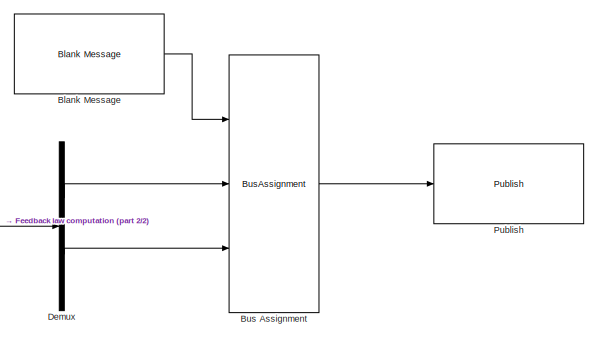
[diagram: root canvas - part 1/2, right side, full height]
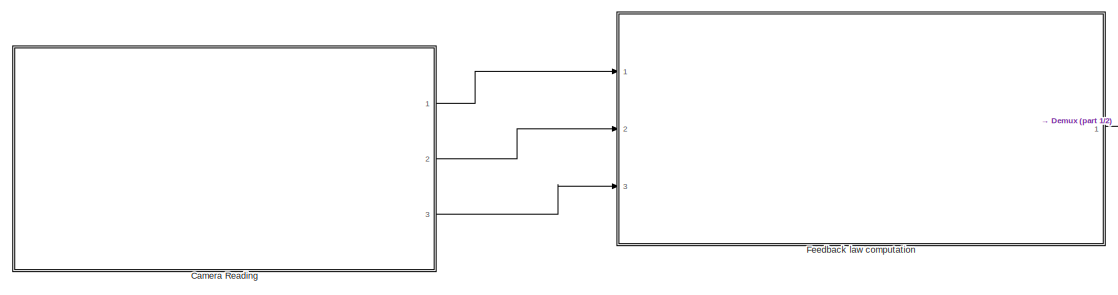
[diagram: root canvas - part 2/2, middle left region]
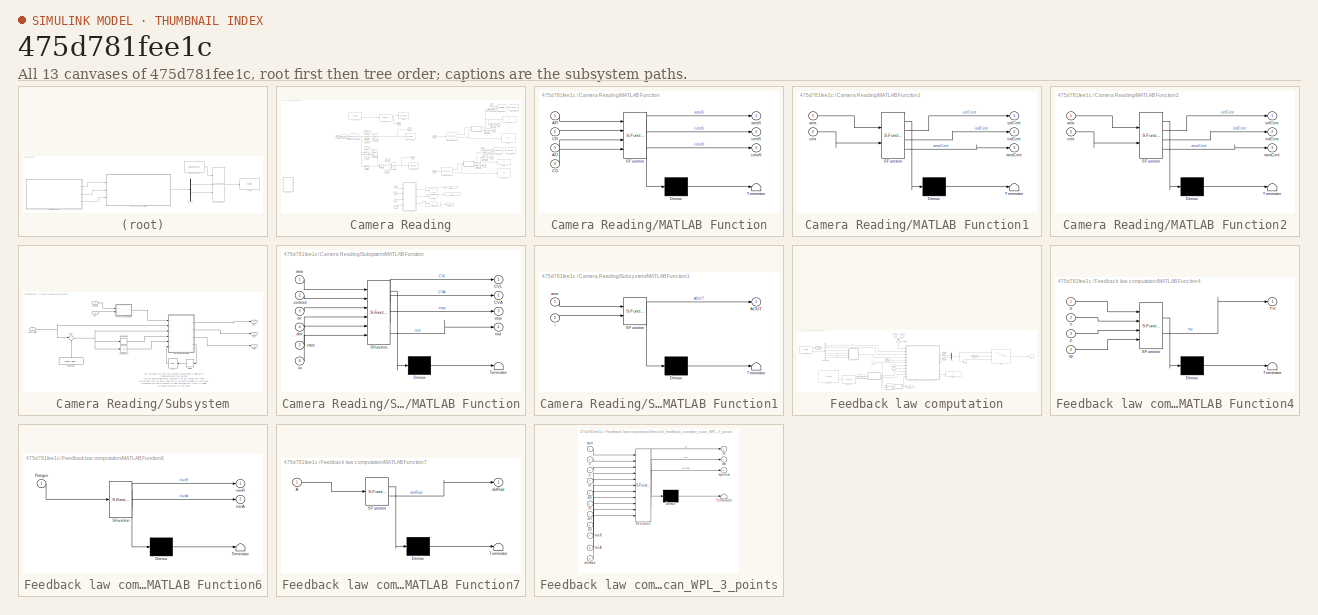
[diagram: thumbnail index - all 13 canvases of the model, root first then tree order]
MODEL slx_475d781fee1c
KIND model
CONFIG AbsTol = auto
CONFIG EnableMultiTasking = off
CONFIG FixedStep = 0.1
CONFIG MaxStep = auto
CONFIG MinStep = auto
CONFIG RelTol = 1e-3
CONFIG SampleTimeConstraint = Unconstrained
CONFIG SolverName = FixedStepAuto
CONFIG StartTime = 0.0
CONFIG StopTime = inf
WORKSPACE source: mxarray member
WORKSPACE SL_ROS_VariableLengthArrays_MaxSizes: object (value not decoded)
BLOCK [Reference] Blank Message  REF=robotlib/Blank Message
  Ports = [0, 1]
  SourceBlock = robotlib/Blank Message
  SourceProductBaseCode = RR
  SourceType = ROS Blank Message
BLOCK [BusAssignment] Bus Assignment
  AssignedSignals = Linear.X,Angular.Z
  Ports = [3, 1]
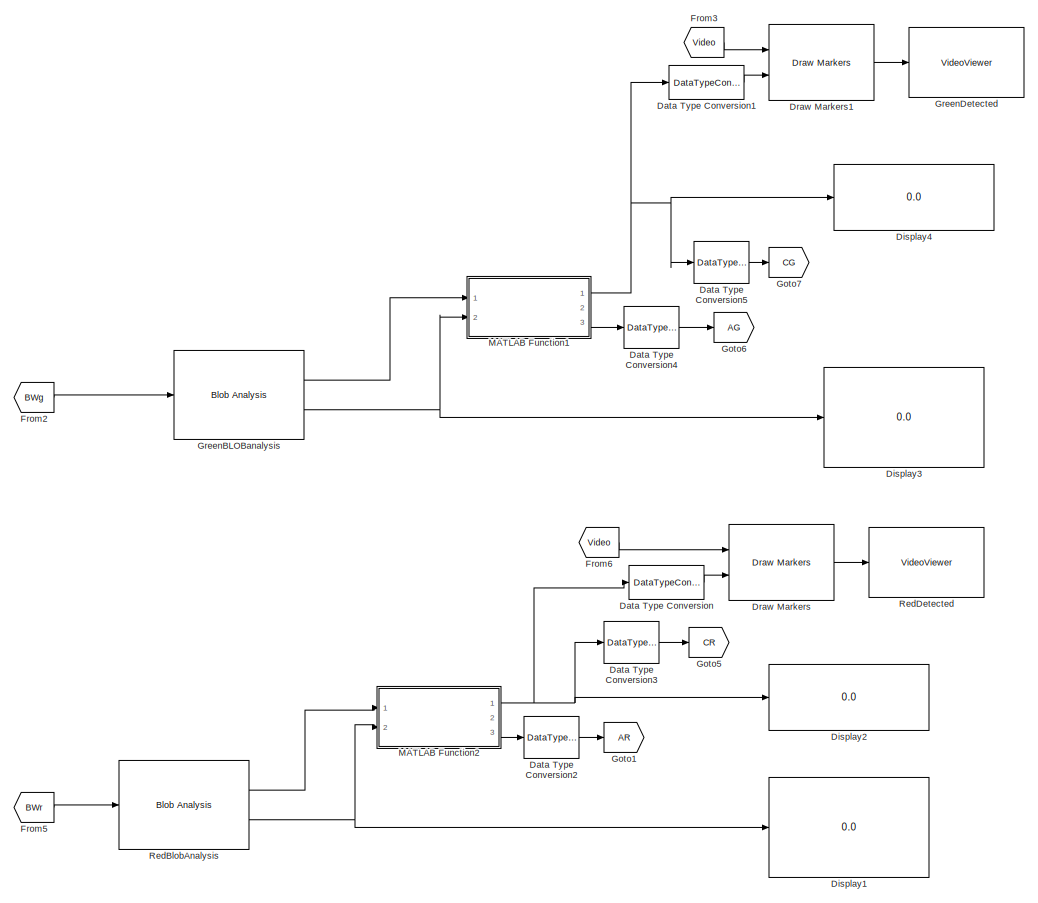
[diagram: Camera Reading - part 1/4, middle right region]
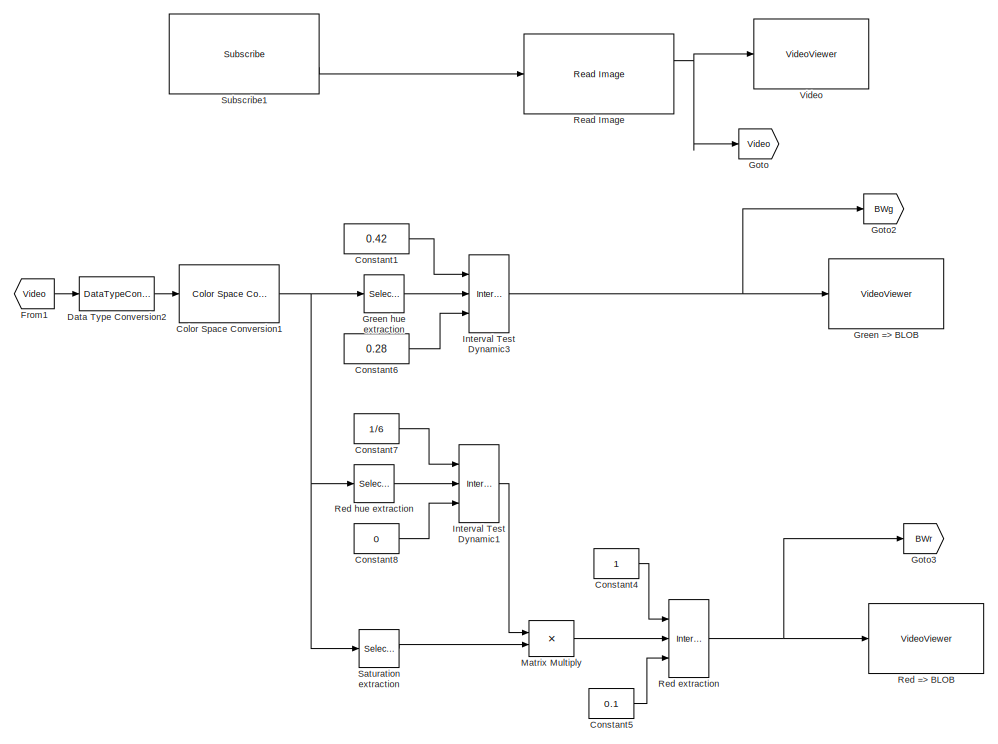
[diagram: Camera Reading - part 2/4, central region]
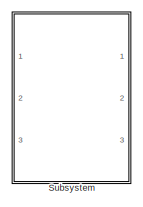
[diagram: Camera Reading - part 3/4, bottom left region]
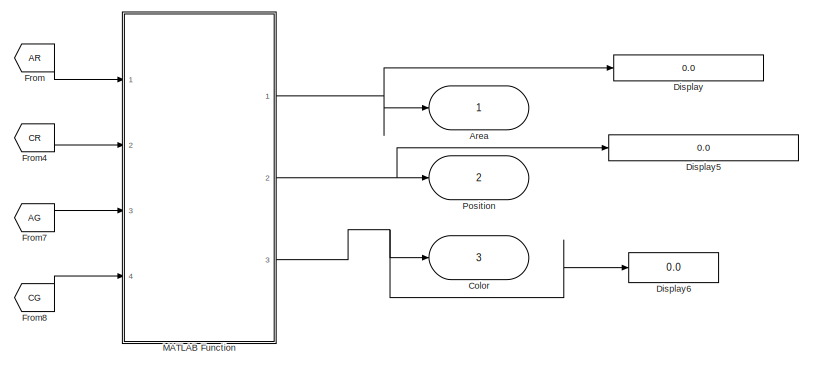
[diagram: Camera Reading - part 4/4, bottom center region]
BLOCK [SubSystem] Camera Reading
  Ports = [0, 3]
  RequestExecContextInheritance = off
BLOCK [Outport] Camera Reading/Area
BLOCK [Outport] Camera Reading/Color
  Port = 3
BLOCK [Reference] Camera Reading/Color Space Conversion1  REF=visionconversions/Color Space
 Conversion
  Ports = [1, 1]
  SourceBlock = visionconversions/Color Space\n Conversion
  SourceProductBaseCode = VP
  SourceType = Color Space Conversion
BLOCK [Constant] Camera Reading/Constant1
  Value = 0.42
BLOCK [Constant] Camera Reading/Constant4
BLOCK [Constant] Camera Reading/Constant5
  Value = 0.1
BLOCK [Constant] Camera Reading/Constant6
  Value = 0.28
BLOCK [Constant] Camera Reading/Constant7
  Value = 1/6
BLOCK [Constant] Camera Reading/Constant8
  Value = 0
BLOCK [DataTypeConversion] Camera Reading/Data Type Conversion
  RndMeth = Floor
  SaturateOnIntegerOverflow = off
BLOCK [DataTypeConversion] Camera Reading/Data Type Conversion1
  RndMeth = Floor
  SaturateOnIntegerOverflow = off
BLOCK [DataTypeConversion] Camera Reading/Data Type Conversion2
  RndMeth = Floor
  SaturateOnIntegerOverflow = off
BLOCK [DataTypeConversion] Camera Reading/Data Type Conversion3
  RndMeth = Floor
  SaturateOnIntegerOverflow = off
BLOCK [DataTypeConversion] Camera Reading/Data Type Conversion4
  RndMeth = Floor
  SaturateOnIntegerOverflow = off
BLOCK [DataTypeConversion] Camera Reading/Data Type Conversion5
  RndMeth = Floor
  SaturateOnIntegerOverflow = off
BLOCK [Display] Camera Reading/Display
  Decimation = 1
  Format = long
  Ports = [1]
BLOCK [Display] Camera Reading/Display1
  Decimation = 1
  Ports = [1]
BLOCK [Display] Camera Reading/Display2
  Decimation = 1
  Ports = [1]
BLOCK [Display] Camera Reading/Display3
  Decimation = 1
  Ports = [1]
BLOCK [Display] Camera Reading/Display4
  Decimation = 1
  Ports = [1]
BLOCK [Display] Camera Reading/Display5
  Decimation = 1
  Ports = [1]
BLOCK [Display] Camera Reading/Display6
  Decimation = 1
  Ports = [1]
BLOCK [Reference] Camera Reading/Draw Markers  REF=visiontextngfix/Draw Markers
  Ports = [2, 1]
  SourceBlock = visiontextngfix/Draw Markers
  SourceProductBaseCode = VP
  SourceType = Draw Markers
BLOCK [Reference] Camera Reading/Draw Markers1  REF=visiontextngfix/Draw Markers
  Ports = [2, 1]
  SourceBlock = visiontextngfix/Draw Markers
  SourceProductBaseCode = VP
  SourceType = Draw Markers
BLOCK [From] Camera Reading/From
  GotoTag = AR
BLOCK [From] Camera Reading/From1
  GotoTag = Video
BLOCK [From] Camera Reading/From2
  GotoTag = BWg
BLOCK [From] Camera Reading/From3
  GotoTag = Video
BLOCK [From] Camera Reading/From4
  GotoTag = CR
BLOCK [From] Camera Reading/From5
  GotoTag = BWr
BLOCK [From] Camera Reading/From6
  GotoTag = Video
BLOCK [From] Camera Reading/From7
  GotoTag = AG
BLOCK [From] Camera Reading/From8
  GotoTag = CG
BLOCK [Goto] Camera Reading/Goto
  GotoTag = Video
BLOCK [Goto] Camera Reading/Goto1
  GotoTag = AR
BLOCK [Goto] Camera Reading/Goto2
  GotoTag = BWg
BLOCK [Goto] Camera Reading/Goto3
  GotoTag = BWr
BLOCK [Goto] Camera Reading/Goto5
  GotoTag = CR
BLOCK [Goto] Camera Reading/Goto6
  GotoTag = AG
BLOCK [Goto] Camera Reading/Goto7
  GotoTag = CG
BLOCK [VideoViewer] Camera Reading/Green => BLOB
  FigPos = [940 1078 591 337]
  Ports = [1]
  ScopeSpecificationString = vipscopes.VideoViewerScopeCfg('CurrentConfiguration', extmgr.ConfigurationSet(extmgr.Configuration('Core','General UI',true),extmgr.Configuration('Core','Source UI',true),extmgr.Configuration('Sources','WiredSimulink',true),extmgr.Configuration('Visuals','Video',true),extmgr.Configuration('Tools','Image Navigation Tools',true,'Magnification',0.788422546634225),extmgr.Configuration('Tools','Image T...<+107ch>
  colormapValue = gray(256)
BLOCK [Selector] Camera Reading/Green hue extraction
  IndexOptions = Index vector (dialog),Index vector (dialog),Index vector (dialog)
  Indices = [1:480],[1:640],1
  InputPortWidth = 3
  NumberOfDimensions = 3
  OutputSizes = 1,1,1
  Ports = [1, 1]
BLOCK [Reference] Camera Reading/GreenBLOBanalysis  REF=visionstatistics/Blob Analysis
  Ports = [1, 2]
  SourceBlock = visionstatistics/Blob Analysis
  SourceProductBaseCode = VP
  SourceType = Blob Analysis
  Tag = vipblks_row_conv
BLOCK [VideoViewer] Camera Reading/GreenDetected
  FigPos = [854 1078 613 342]
  Ports = [1]
  ScopeSpecificationString = vipscopes.VideoViewerScopeCfg('CurrentConfiguration', extmgr.ConfigurationSet(extmgr.Configuration('Core','General UI',true),extmgr.Configuration('Core','Source UI',true),extmgr.Configuration('Sources','WiredSimulink',true),extmgr.Configuration('Visuals','Video',true),extmgr.Configuration('Tools','Image Navigation Tools',true,'Magnification',0.760416666666667,'FitToView',true),extmgr.Configuration...<+124ch>
  colormapValue = gray(256)
BLOCK [Reference] Camera Reading/Interval Test Dynamic1  REF=simulink/Logic and Bit
Operations/Interval Test
Dynamic
  Ports = [3, 1]
  SourceBlock = simulink/Logic and Bit\nOperations/Interval Test\nDynamic
  SourceProductBaseCode = SL
  SourceType = Interval Test Dynamic
BLOCK [Reference] Camera Reading/Interval Test Dynamic3  REF=simulink/Logic and Bit
Operations/Interval Test
Dynamic
  Ports = [3, 1]
  SourceBlock = simulink/Logic and Bit\nOperations/Interval Test\nDynamic
  SourceProductBaseCode = SL
  SourceType = Interval Test Dynamic
BLOCK [SubSystem] Camera Reading/MATLAB Function
  ErrorFcn = Stateflow.Translate.translate
  PermitHierarchicalResolution = ExplicitOnly
  Ports = [4, 3]
  RequestExecContextInheritance = off
  SFBlockType = MATLAB Function
  TreatAsAtomicUnit = on
BLOCK [Demux] Camera Reading/MATLAB Function/ Demux 
  Outputs = 1
  Ports = [1, 1]
BLOCK [S-Function] Camera Reading/MATLAB Function/ SFunction 
  EnableBusSupport = on
  FunctionName = sf_sfun
  PortCounts = [4 4]
  Ports = [4, 4]
  SFcnIsStateOwnerBlock = off
  SFunctionDeploymentMode = off
  Tag = Stateflow S-Function 5
BLOCK [Terminator] Camera Reading/MATLAB Function/ Terminator 
BLOCK [Inport] Camera Reading/MATLAB Function/AG
  Port = 3
BLOCK [Inport] Camera Reading/MATLAB Function/AR
BLOCK [Inport] Camera Reading/MATLAB Function/CG
  Port = 4
BLOCK [Inport] Camera Reading/MATLAB Function/CR
  Port = 2
BLOCK [Outport] Camera Reading/MATLAB Function/areaS
BLOCK [Outport] Camera Reading/MATLAB Function/centS
  Port = 2
BLOCK [Outport] Camera Reading/MATLAB Function/colorS
  Port = 3
BLOCK [SubSystem] Camera Reading/MATLAB Function1
  ErrorFcn = Stateflow.Translate.translate
  PermitHierarchicalResolution = ExplicitOnly
  Ports = [2, 3]
  RequestExecContextInheritance = off
  SFBlockType = MATLAB Function
  TreatAsAtomicUnit = on
BLOCK [Demux] Camera Reading/MATLAB Function1/ Demux 
  Outputs = 1
  Ports = [1, 1]
BLOCK [S-Function] Camera Reading/MATLAB Function1/ SFunction 
  EnableBusSupport = on
  FunctionName = sf_sfun
  PortCounts = [2 4]
  Ports = [2, 4]
  SFcnIsStateOwnerBlock = off
  SFunctionDeploymentMode = off
  Tag = Stateflow S-Function 1
BLOCK [Terminator] Camera Reading/MATLAB Function1/ Terminator 
BLOCK [Inport] Camera Reading/MATLAB Function1/area
BLOCK [Outport] Camera Reading/MATLAB Function1/areaCent
  Port = 3
BLOCK [Inport] Camera Reading/MATLAB Function1/cent
  Port = 2
BLOCK [Outport] Camera Reading/MATLAB Function1/indCent
  Port = 2
BLOCK [Outport] Camera Reading/MATLAB Function1/selCent
BLOCK [SubSystem] Camera Reading/MATLAB Function2
  ErrorFcn = Stateflow.Translate.translate
  PermitHierarchicalResolution = ExplicitOnly
  Ports = [2, 3]
  RequestExecContextInheritance = off
  SFBlockType = MATLAB Function
  TreatAsAtomicUnit = on
BLOCK [Demux] Camera Reading/MATLAB Function2/ Demux 
  Outputs = 1
  Ports = [1, 1]
BLOCK [S-Function] Camera Reading/MATLAB Function2/ SFunction 
  EnableBusSupport = on
  FunctionName = sf_sfun
  PortCounts = [2 4]
  Ports = [2, 4]
  SFcnIsStateOwnerBlock = off
  SFunctionDeploymentMode = off
  Tag = Stateflow S-Function 3
BLOCK [Terminator] Camera Reading/MATLAB Function2/ Terminator 
BLOCK [Inport] Camera Reading/MATLAB Function2/area
BLOCK [Outport] Camera Reading/MATLAB Function2/areaCent
  Port = 3
BLOCK [Inport] Camera Reading/MATLAB Function2/cent
  Port = 2
BLOCK [Outport] Camera Reading/MATLAB Function2/indCent
  Port = 2
BLOCK [Outport] Camera Reading/MATLAB Function2/selCent
BLOCK [Product] Camera Reading/Matrix Multiply
  Ports = [2, 1]
BLOCK [Outport] Camera Reading/Position
  Port = 2
BLOCK [Reference] Camera Reading/Read Image  REF=robotlib/Read Image
  Ports = [1, 2]
  SourceBlock = robotlib/Read Image
  SourceProductBaseCode = RR
  SourceType = ros.slros.internal.block.ReadImage
BLOCK [VideoViewer] Camera Reading/Red => BLOB
  FigPos = [714 828 561 358]
  Ports = [1]
  ScopeSpecificationString = vipscopes.VideoViewerScopeCfg('CurrentConfiguration', extmgr.ConfigurationSet(extmgr.Configuration('Core','General UI',true),extmgr.Configuration('Core','Source UI',true),extmgr.Configuration('Sources','WiredSimulink',true),extmgr.Configuration('Visuals','Video',true),extmgr.Configuration('Tools','Image Navigation Tools',true,'Magnification',0.788422546634225,'FitToView',true),extmgr.Configuration...<+126ch>
  colormapValue = gray(256)
BLOCK [Reference] Camera Reading/Red extraction  REF=simulink/Logic and Bit
Operations/Interval Test
Dynamic
  Ports = [3, 1]
  SourceBlock = simulink/Logic and Bit\nOperations/Interval Test\nDynamic
  SourceProductBaseCode = SL
  SourceType = Interval Test Dynamic
BLOCK [Selector] Camera Reading/Red hue extraction
  IndexOptions = Index vector (dialog),Index vector (dialog),Index vector (dialog)
  Indices = [1:480],[1:640],1
  InputPortWidth = 3
  NumberOfDimensions = 3
  OutputSizes = 1,1,1
  Ports = [1, 1]
BLOCK [Reference] Camera Reading/RedBlobAnalysis  REF=visionstatistics/Blob Analysis
  Ports = [1, 2]
  SourceBlock = visionstatistics/Blob Analysis
  SourceProductBaseCode = VP
  SourceType = Blob Analysis
  Tag = vipblks_row_conv
BLOCK [VideoViewer] Camera Reading/RedDetected
  FigPos = [1085 1035 593 356]
  Ports = [1]
  ScopeSpecificationString = vipscopes.VideoViewerScopeCfg('CurrentConfiguration', extmgr.ConfigurationSet(extmgr.Configuration('Core','General UI',true),extmgr.Configuration('Core','Source UI',true),extmgr.Configuration('Sources','WiredSimulink',true),extmgr.Configuration('Visuals','Video',true),extmgr.Configuration('Tools','Image Navigation Tools',true,'Magnification',0.760416666666667,'FitToView',true),extmgr.Configuration...<+126ch>
  colormapValue = gray(256)
BLOCK [Selector] Camera Reading/Saturation extraction
  IndexOptions = Index vector (dialog),Index vector (dialog),Index vector (dialog)
  Indices = [1:480],[1:640],2
  InputPortWidth = 3
  NumberOfDimensions = 3
  OutputSizes = 1,1,1
  Ports = [1, 1]
BLOCK [Reference] Camera Reading/Subscribe1  REF=robotlib/Subscribe
  Ports = [0, 2]
  SourceBlock = robotlib/Subscribe
  SourceProductBaseCode = RR
  SourceType = ROS Subscribe
BLOCK [SubSystem] Camera Reading/Subsystem
  Commented = on
  Ports = [3, 3]
  RequestExecContextInheritance = off
BLOCK [Outport] Camera Reading/Subsystem/CVA
  Port = 2
BLOCK [Outport] Camera Reading/Subsystem/CVL
BLOCK [Constant] Camera Reading/Subsystem/Constant
  NameLocation = right
  Value = [640/2 480/2]
  VectorParams1D = off
BLOCK [Delay] Camera Reading/Subsystem/Delay
  DelayLength = 10
  InputPortMap = u0
  NameLocation = top
  Ports = [1, 1]
BLOCK [Derivative] Camera Reading/Subsystem/Derivative
BLOCK [InitialCondition] Camera Reading/Subsystem/IC
  NameLocation = top
  Value = 0
BLOCK [Integrator] Camera Reading/Subsystem/Integrator
  Ports = [1, 1]
BLOCK [SubSystem] Camera Reading/Subsystem/MATLAB Function
  ErrorFcn = Stateflow.Translate.translate
  PermitHierarchicalResolution = ExplicitOnly
  Ports = [6, 4]
  RequestExecContextInheritance = off
  SFBlockType = MATLAB Function
  TreatAsAtomicUnit = on
BLOCK [Demux] Camera Reading/Subsystem/MATLAB Function/ Demux 
  Outputs = 1
  Ports = [1, 1]
BLOCK [S-Function] Camera Reading/Subsystem/MATLAB Function/ SFunction 
  EnableBusSupport = on
  FunctionName = sf_sfun
  PortCounts = [6 5]
  Ports = [6, 5]
  SFcnIsStateOwnerBlock = off
  SFunctionDeploymentMode = off
  Tag = Stateflow S-Function 2
BLOCK [Terminator] Camera Reading/Subsystem/MATLAB Function/ Terminator 
BLOCK [Outport] Camera Reading/Subsystem/MATLAB Function/CVA
  Port = 2
BLOCK [Outport] Camera Reading/Subsystem/MATLAB Function/CVL
BLOCK [Inport] Camera Reading/Subsystem/MATLAB Function/area
BLOCK [Inport] Camera Reading/Subsystem/MATLAB Function/centroid
  Port = 2
BLOCK [Inport] Camera Reading/Subsystem/MATLAB Function/derr
  Port = 4
BLOCK [Inport] Camera Reading/Subsystem/MATLAB Function/err
  Port = 3
BLOCK [Inport] Camera Reading/Subsystem/MATLAB Function/iin
  Port = 6
BLOCK [Inport] Camera Reading/Subsystem/MATLAB Function/interr
  Port = 5
BLOCK [Outport] Camera Reading/Subsystem/MATLAB Function/iout
  Port = 4
BLOCK [Outport] Camera Reading/Subsystem/MATLAB Function/stop
  Port = 3
BLOCK [SubSystem] Camera Reading/Subsystem/MATLAB Function1
  ErrorFcn = Stateflow.Translate.translate
  PermitHierarchicalResolution = ExplicitOnly
  Ports = [2, 1]
  RequestExecContextInheritance = off
  SFBlockType = MATLAB Function
  TreatAsAtomicUnit = on
BLOCK [Demux] Camera Reading/Subsystem/MATLAB Function1/ Demux 
  Outputs = 1
  Ports = [1, 1]
BLOCK [S-Function] Camera Reading/Subsystem/MATLAB Function1/ SFunction 
  EnableBusSupport = on
  FunctionName = sf_sfun
  PortCounts = [2 2]
  Ports = [2, 2]
  SFcnIsStateOwnerBlock = off
  SFunctionDeploymentMode = off
  Tag = Stateflow S-Function 4
BLOCK [Terminator] Camera Reading/Subsystem/MATLAB Function1/ Terminator 
BLOCK [Outport] Camera Reading/Subsystem/MATLAB Function1/AOUT
BLOCK [Inport] Camera Reading/Subsystem/MATLAB Function1/area
BLOCK [Inport] Camera Reading/Subsystem/MATLAB Function1/i
  Port = 2
BLOCK [Sum] Camera Reading/Subsystem/Sum
  Inputs = |-+
  Ports = [2, 1]
BLOCK [Inport] Camera Reading/Subsystem/areaR
BLOCK [Inport] Camera Reading/Subsystem/centroidR
  Port = 2
BLOCK [Inport] Camera Reading/Subsystem/iR
  Port = 3
BLOCK [Outport] Camera Reading/Subsystem/stop
  Port = 3
BLOCK [VideoViewer] Camera Reading/Video
  FigPos = [689 794 566 352]
  Ports = [1]
  ScopeSpecificationString = vipscopes.VideoViewerScopeCfg('CurrentConfiguration', extmgr.ConfigurationSet(extmgr.Configuration('Core','General UI',true),extmgr.Configuration('Core','Source UI',true),extmgr.Configuration('Sources','WiredSimulink',true),extmgr.Configuration('Sources','SimulinkEvent',false),extmgr.Configuration('Sources','Simulink',false),extmgr.Configuration('Sources','File',false),extmgr.Configuration('Source...<+1663ch>
  colormapValue = gray(256)
BLOCK [Demux] Demux
  Outputs = 2
  Ports = [1, 2]
BLOCK [SubSystem] Feedback law computation
  Ports = [3, 1]
  RequestExecContextInheritance = off
BLOCK [Lookup_n-D] Feedback law computation/2-D Lookup Table1
  BreakpointsForDimension1 = [4220 10400 45519 96000]
  BreakpointsForDimension2 = [0.5 0.8 1.8 2.8]
  InputPortMap = u0,u1
  InternalRulePriority = Speed
  Ports = [2, 1]
  RndMeth = Simplest
  Table = [0.00400713348672168 0.0102582617260075 0.0519324499879129 0.125663706143592;0.00969627362219072 0.0248224604728083 0.125663706143592 0.304075140791901;0.0490873852123405 0.125663706143592 0.636172512351933 1.539380400259;0.125663706143592 0.321699087727595 1.62860163162095 3.94081382466304]
BLOCK [Inport] Feedback law computation/Area
BLOCK [BusSelector] Feedback law computation/Bus Selector2
  OutputSignals = Pose.Pose.Position.X,Pose.Pose.Position.Y,Pose.Pose.Orientation.X,Pose.Pose.Orientation.Y,Pose.Pose.Orientation.Z,Pose.Pose.Orientation.W
  Ports = [1, 6]
BLOCK [Inport] Feedback law computation/Color
  Port = 3
BLOCK [Constant] Feedback law computation/Constant6
  Value = WList
BLOCK [Constant] Feedback law computation/Constant8
  NameLocation = left
BLOCK [Constant] Feedback law computation/Constant9
  NameLocation = left
  Value = 0
BLOCK [DataTypeConversion] Feedback law computation/Data Type Conversion
  RndMeth = Floor
  SaturateOnIntegerOverflow = off
BLOCK [Delay] Feedback law computation/Delay3
  DelayLength = 1
  InputPortMap = u0
  Ports = [1, 1]
BLOCK [Display] Feedback law computation/Display
  Decimation = 1
  Ports = [1]
BLOCK [Display] Feedback law computation/Display1
  Decimation = 1
  Ports = [1]
BLOCK [From] Feedback law computation/From1
  GotoTag = IsNewOdom
BLOCK [Goto] Feedback law computation/Goto2
  GotoTag = IsNewOdom
BLOCK [SubSystem] Feedback law computation/MATLAB Function4
  ErrorFcn = Stateflow.Translate.translate
  PermitHierarchicalResolution = ExplicitOnly
  Ports = [4, 1]
  RequestExecContextInheritance = off
  SFBlockType = MATLAB Function
  TreatAsAtomicUnit = on
BLOCK [Demux] Feedback law computation/MATLAB Function4/ Demux 
  Outputs = 1
  Ports = [1, 1]
BLOCK [S-Function] Feedback law computation/MATLAB Function4/ SFunction 
  EnableBusSupport = on
  FunctionName = sf_sfun
  PortCounts = [4 2]
  Ports = [4, 2]
  SFcnIsStateOwnerBlock = off
  SFunctionDeploymentMode = off
  Tag = Stateflow S-Function 11
BLOCK [Terminator] Feedback law computation/MATLAB Function4/ Terminator 
BLOCK [Outport] Feedback law computation/MATLAB Function4/TH
BLOCK [Inport] Feedback law computation/MATLAB Function4/W
  Port = 4
BLOCK [Inport] Feedback law computation/MATLAB Function4/X
BLOCK [Inport] Feedback law computation/MATLAB Function4/Y
  Port = 2
BLOCK [Inport] Feedback law computation/MATLAB Function4/Z
  Port = 3
BLOCK [SubSystem] Feedback law computation/MATLAB Function6
  ErrorFcn = Stateflow.Translate.translate
  PermitHierarchicalResolution = ExplicitOnly
  Ports = [1, 2]
  RequestExecContextInheritance = off
  SFBlockType = MATLAB Function
  TreatAsAtomicUnit = on
BLOCK [Demux] Feedback law computation/MATLAB Function6/ Demux 
  Outputs = 1
  Ports = [1, 1]
BLOCK [S-Function] Feedback law computation/MATLAB Function6/ SFunction 
  EnableBusSupport = on
  FunctionName = sf_sfun
  PortCounts = [1 3]
  Ports = [1, 3]
  SFcnIsStateOwnerBlock = off
  SFunctionDeploymentMode = off
  Tag = Stateflow S-Function 15
BLOCK [Terminator] Feedback law computation/MATLAB Function6/ Terminator 
BLOCK [Inport] Feedback law computation/MATLAB Function6/Ranges
BLOCK [Outport] Feedback law computation/MATLAB Function6/minA
  Port = 2
BLOCK [Outport] Feedback law computation/MATLAB Function6/minR
BLOCK [SubSystem] Feedback law computation/MATLAB Function7
  ErrorFcn = Stateflow.Translate.translate
  PermitHierarchicalResolution = ExplicitOnly
  Ports = [1, 1]
  RequestExecContextInheritance = off
  SFBlockType = MATLAB Function
  TreatAsAtomicUnit = on
BLOCK [Demux] Feedback law computation/MATLAB Function7/ Demux 
  Outputs = 1
  Ports = [1, 1]
BLOCK [S-Function] Feedback law computation/MATLAB Function7/ SFunction 
  EnableBusSupport = on
  FunctionName = sf_sfun
  PortCounts = [1 2]
  Ports = [1, 2]
  SFcnIsStateOwnerBlock = off
  SFunctionDeploymentMode = off
  Tag = Stateflow S-Function 16
BLOCK [Terminator] Feedback law computation/MATLAB Function7/ Terminator 
BLOCK [Inport] Feedback law computation/MATLAB Function7/A
BLOCK [Outport] Feedback law computation/MATLAB Function7/detRad
BLOCK [ManualSwitch] Feedback law computation/Manual Switch
  NameLocation = left
BLOCK [Mux] Feedback law computation/Mux1
  DisplayOption = bar
  Inputs = 2
  Ports = [2, 1]
BLOCK [Outport] Feedback law computation/Out2
BLOCK [Inport] Feedback law computation/Position
  Port = 2
BLOCK [Reference] Feedback law computation/Read Scan  REF=robotlib/Read Scan
  Ports = [1, 3]
  SourceBlock = robotlib/Read Scan
  SourceProductBaseCode = RR
  SourceType = ros.slros.internal.block.ReadScan
BLOCK [Saturate] Feedback law computation/Saturation2
  LowerLimit = -0.2
  UpperLimit = 0.2
BLOCK [Saturate] Feedback law computation/Saturation3
  LowerLimit = -0.4
  UpperLimit = 0.4
BLOCK [Reference] Feedback law computation/Subscribe2  REF=robotlib/Subscribe
  Ports = [0, 2]
  SourceBlock = robotlib/Subscribe
  SourceProductBaseCode = RR
  SourceType = ROS Subscribe
BLOCK [Reference] Feedback law computation/Subscribe3  REF=robotlib/Subscribe
  Ports = [0, 2]
  SourceBlock = robotlib/Subscribe
  SourceProductBaseCode = RR
  SourceType = ROS Subscribe
BLOCK [Switch] Feedback law computation/Switch1
  Criteria = u2 ~= 0
  InputSameDT = off
  SaturateOnIntegerOverflow = off
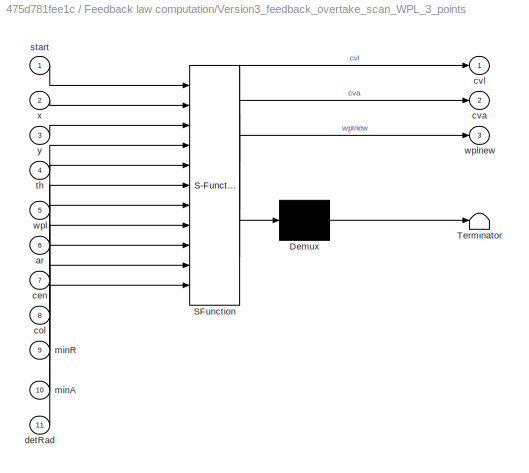
BLOCK [SubSystem] Feedback law computation/Version3_feedback_overtake_scan_WPL_3_points
  ErrorFcn = Stateflow.Translate.translate
  PermitHierarchicalResolution = ExplicitOnly
  Ports = [11, 3]
  RequestExecContextInheritance = off
  SFBlockType = Chart
  TreatAsAtomicUnit = on
BLOCK [Demux] Feedback law computation/Version3_feedback_overtake_scan_WPL_3_points/ Demux 
  Outputs = 1
  Ports = [1, 1]
BLOCK [S-Function] Feedback law computation/Version3_feedback_overtake_scan_WPL_3_points/ SFunction 
  EnableBusSupport = on
  FunctionName = sf_sfun
  PortCounts = [11 4]
  Ports = [11, 4]
  SFcnIsStateOwnerBlock = off
  SFunctionDeploymentMode = off
  Tag = Stateflow S-Function 10
BLOCK [Terminator] Feedback law computation/Version3_feedback_overtake_scan_WPL_3_points/ Terminator 
BLOCK [Inport] Feedback law computation/Version3_feedback_overtake_scan_WPL_3_points/ar
  Port = 6
BLOCK [Inport] Feedback law computation/Version3_feedback_overtake_scan_WPL_3_points/cen
  Port = 7
BLOCK [Inport] Feedback law computation/Version3_feedback_overtake_scan_WPL_3_points/col
  Port = 8
BLOCK [Outport] Feedback law computation/Version3_feedback_overtake_scan_WPL_3_points/cva
  Port = 2
BLOCK [Outport] Feedback law computation/Version3_feedback_overtake_scan_WPL_3_points/cvl
BLOCK [Inport] Feedback law computation/Version3_feedback_overtake_scan_WPL_3_points/detRad
  Port = 11
BLOCK [Inport] Feedback law computation/Version3_feedback_overtake_scan_WPL_3_points/minA
  Port = 10
BLOCK [Inport] Feedback law computation/Version3_feedback_overtake_scan_WPL_3_points/minR
  Port = 9
BLOCK [Inport] Feedback law computation/Version3_feedback_overtake_scan_WPL_3_points/start
BLOCK [Inport] Feedback law computation/Version3_feedback_overtake_scan_WPL_3_points/th
  Port = 4
BLOCK [Inport] Feedback law computation/Version3_feedback_overtake_scan_WPL_3_points/wpl
  Port = 5
BLOCK [Outport] Feedback law computation/Version3_feedback_overtake_scan_WPL_3_points/wplnew
  Port = 3
BLOCK [Inport] Feedback law computation/Version3_feedback_overtake_scan_WPL_3_points/x
  Port = 2
BLOCK [Inport] Feedback law computation/Version3_feedback_overtake_scan_WPL_3_points/y
  Port = 3
BLOCK [Reference] Publish  REF=robotlib/Publish
  Ports = [1]
  SourceBlock = robotlib/Publish
  SourceProductBaseCode = RR
  SourceType = ROS Publish
ANNOTATION Camera Reading/Subsystem: why this delay? so that the turtlebot moves linearly a while after having detected the red ball this has been implemented, because if the bot moves as it sees the red ball, then the latter goes out of the central position of the image, mandating the control scheme to apply an important thrust to realign the ball in the center of the image by decreasing the angular velocity gains and increasing the...<+145ch>
LINE Blank Message:1 -> Bus Assignment:1
LINE Bus Assignment:1 -> Publish:1
NET Camera Reading/Color Space Conversion1:1 -> Camera Reading/Green hue extraction:1, Camera Reading/Red hue extraction:1, Camera Reading/Saturation extraction:1
LINE Camera Reading/Constant1:1 -> Camera Reading/Interval Test Dynamic3:1
LINE Camera Reading/Constant4:1 -> Camera Reading/Red extraction:1
LINE Camera Reading/Constant5:1 -> Camera Reading/Red extraction:3
LINE Camera Reading/Constant6:1 -> Camera Reading/Interval Test Dynamic3:3
LINE Camera Reading/Constant7:1 -> Camera Reading/Interval Test Dynamic1:1
LINE Camera Reading/Constant8:1 -> Camera Reading/Interval Test Dynamic1:3
LINE Camera Reading/Data Type Conversion1:1 -> Camera Reading/Draw Markers1:2
NET Camera Reading/Data Type Conversion2:1 -> Camera Reading/Color Space Conversion1:1, Camera Reading/Goto1:1
LINE Camera Reading/Data Type Conversion3:1 -> Camera Reading/Goto5:1
LINE Camera Reading/Data Type Conversion4:1 -> Camera Reading/Goto6:1
LINE Camera Reading/Data Type Conversion5:1 -> Camera Reading/Goto7:1
LINE Camera Reading/Data Type Conversion:1 -> Camera Reading/Draw Markers:2
LINE Camera Reading/Draw Markers1:1 -> Camera Reading/GreenDetected:1
LINE Camera Reading/Draw Markers:1 -> Camera Reading/RedDetected:1
LINE Camera Reading/From1:1 -> Camera Reading/Data Type Conversion2:1
LINE Camera Reading/From2:1 -> Camera Reading/GreenBLOBanalysis:1
LINE Camera Reading/From3:1 -> Camera Reading/Draw Markers1:1
LINE Camera Reading/From4:1 -> Camera Reading/MATLAB Function:2
LINE Camera Reading/From5:1 -> Camera Reading/RedBlobAnalysis:1
LINE Camera Reading/From6:1 -> Camera Reading/Draw Markers:1
LINE Camera Reading/From7:1 -> Camera Reading/MATLAB Function:3
LINE Camera Reading/From8:1 -> Camera Reading/MATLAB Function:4
LINE Camera Reading/From:1 -> Camera Reading/MATLAB Function:1
LINE Camera Reading/Green hue extraction:1 -> Camera Reading/Interval Test Dynamic3:2
LINE Camera Reading/GreenBLOBanalysis:1 -> Camera Reading/MATLAB Function1:1
NET Camera Reading/GreenBLOBanalysis:2 -> Camera Reading/Display3:1, Camera Reading/MATLAB Function1:2
LINE Camera Reading/Interval Test Dynamic1:1 -> Camera Reading/Matrix Multiply:1
NET Camera Reading/Interval Test Dynamic3:1 -> Camera Reading/Goto2:1, Camera Reading/Green => BLOB:1
NET Camera Reading/MATLAB Function1:1 -> Camera Reading/Data Type Conversion1:1, Camera Reading/Data Type Conversion5:1, Camera Reading/Display4:1
LINE Camera Reading/MATLAB Function1:3 -> Camera Reading/Data Type Conversion4:1
NET Camera Reading/MATLAB Function2:1 -> Camera Reading/Data Type Conversion3:1, Camera Reading/Data Type Conversion:1, Camera Reading/Display2:1
LINE Camera Reading/MATLAB Function2:3 -> Camera Reading/Data Type Conversion2:1
NET Camera Reading/MATLAB Function:1 -> Camera Reading/Area:1, Camera Reading/Display:1
NET Camera Reading/MATLAB Function:2 -> Camera Reading/Display5:1, Camera Reading/Position:1
NET Camera Reading/MATLAB Function:3 -> Camera Reading/Color:1, Camera Reading/Display6:1
LINE Camera Reading/Matrix Multiply:1 -> Camera Reading/Red extraction:2
NET Camera Reading/Read Image:1 -> Camera Reading/Goto:1, Camera Reading/Video:1
NET Camera Reading/Red extraction:1 -> Camera Reading/Goto3:1, Camera Reading/Red => BLOB:1
LINE Camera Reading/Red hue extraction:1 -> Camera Reading/Interval Test Dynamic1:2
LINE Camera Reading/RedBlobAnalysis:1 -> Camera Reading/MATLAB Function2:1
NET Camera Reading/RedBlobAnalysis:2 -> Camera Reading/Display1:1, Camera Reading/MATLAB Function2:2
LINE Camera Reading/Saturation extraction:1 -> Camera Reading/Matrix Multiply:2
LINE Camera Reading/Subscribe1:2 -> Camera Reading/Read Image:1
LINE Camera Reading/Subsystem/Constant:1 -> Camera Reading/Subsystem/Sum:2
LINE Camera Reading/Subsystem/Delay:1 -> Camera Reading/Subsystem/IC:1
LINE Camera Reading/Subsystem/Derivative:1 -> Camera Reading/Subsystem/MATLAB Function:4
LINE Camera Reading/Subsystem/IC:1 -> Camera Reading/Subsystem/MATLAB Function:6
LINE Camera Reading/Subsystem/Integrator:1 -> Camera Reading/Subsystem/MATLAB Function:5
LINE Camera Reading/Subsystem/MATLAB Function1:1 -> Camera Reading/Subsystem/MATLAB Function:1
LINE Camera Reading/Subsystem/MATLAB Function:1 -> Camera Reading/Subsystem/CVL:1
LINE Camera Reading/Subsystem/MATLAB Function:2 -> Camera Reading/Subsystem/CVA:1
LINE Camera Reading/Subsystem/MATLAB Function:3 -> Camera Reading/Subsystem/stop:1
LINE Camera Reading/Subsystem/MATLAB Function:4 -> Camera Reading/Subsystem/Delay:1
NET Camera Reading/Subsystem/Sum:1 -> Camera Reading/Subsystem/Derivative:1, Camera Reading/Subsystem/Integrator:1, Camera Reading/Subsystem/MATLAB Function:3
LINE Camera Reading/Subsystem/areaR:1 -> Camera Reading/Subsystem/MATLAB Function1:1
NET Camera Reading/Subsystem/centroidR:1 -> Camera Reading/Subsystem/MATLAB Function:2, Camera Reading/Subsystem/Sum:1
LINE Camera Reading/Subsystem/iR:1 -> Camera Reading/Subsystem/MATLAB Function1:2
LINE Camera Reading:1 -> Feedback law computation:1
LINE Camera Reading:2 -> Feedback law computation:2
LINE Camera Reading:3 -> Feedback law computation:3
LINE Demux:1 -> Bus Assignment:2
LINE Demux:2 -> Bus Assignment:3
LINE Feedback law computation/2-D Lookup Table1:1 -> Feedback law computation/MATLAB Function7:1
NET Feedback law computation/Area:1 -> Feedback law computation/2-D Lookup Table1:1, Feedback law computation/Version3_feedback_overtake_scan_WPL_3_points:6
LINE Feedback law computation/Bus Selector2:1 -> Feedback law computation/Version3_feedback_overtake_scan_WPL_3_points:2
LINE Feedback law computation/Bus Selector2:2 -> Feedback law computation/Version3_feedback_overtake_scan_WPL_3_points:3
LINE Feedback law computation/Bus Selector2:3 -> Feedback law computation/MATLAB Function4:1
LINE Feedback law computation/Bus Selector2:4 -> Feedback law computation/MATLAB Function4:2
LINE Feedback law computation/Bus Selector2:5 -> Feedback law computation/MATLAB Function4:3
LINE Feedback law computation/Bus Selector2:6 -> Feedback law computation/MATLAB Function4:4
LINE Feedback law computation/Color:1 -> Feedback law computation/Version3_feedback_overtake_scan_WPL_3_points:8
LINE Feedback law computation/Constant6:1 -> Feedback law computation/Version3_feedback_overtake_scan_WPL_3_points:5
LINE Feedback law computation/Constant8:1 -> Feedback law computation/Manual Switch:1
LINE Feedback law computation/Constant9:1 -> Feedback law computation/Manual Switch:2
LINE Feedback law computation/Data Type Conversion:1 -> Feedback law computation/MATLAB Function6:1
LINE Feedback law computation/Delay3:1 -> Feedback law computation/Switch1:3
LINE Feedback law computation/From1:1 -> Feedback law computation/Switch1:2
LINE Feedback law computation/MATLAB Function4:1 -> Feedback law computation/Version3_feedback_overtake_scan_WPL_3_points:4
NET Feedback law computation/MATLAB Function6:1 -> Feedback law computation/2-D Lookup Table1:2, Feedback law computation/Version3_feedback_overtake_scan_WPL_3_points:9
LINE Feedback law computation/MATLAB Function6:2 -> Feedback law computation/Version3_feedback_overtake_scan_WPL_3_points:10
NET Feedback law computation/MATLAB Function7:1 -> Feedback law computation/Display1:1, Feedback law computation/Version3_feedback_overtake_scan_WPL_3_points:11
LINE Feedback law computation/Manual Switch:1 -> Feedback law computation/Version3_feedback_overtake_scan_WPL_3_points:1
NET Feedback law computation/Mux1:1 -> Feedback law computation/Delay3:1, Feedback law computation/Switch1:1
LINE Feedback law computation/Position:1 -> Feedback law computation/Version3_feedback_overtake_scan_WPL_3_points:7
LINE Feedback law computation/Read Scan:1 -> Feedback law computation/Data Type Conversion:1
LINE Feedback law computation/Saturation2:1 -> Feedback law computation/Mux1:1
LINE Feedback law computation/Saturation3:1 -> Feedback law computation/Mux1:2
LINE Feedback law computation/Subscribe2:1 -> Feedback law computation/Goto2:1
LINE Feedback law computation/Subscribe2:2 -> Feedback law computation/Bus Selector2:1
LINE Feedback law computation/Subscribe3:2 -> Feedback law computation/Read Scan:1
LINE Feedback law computation/Switch1:1 -> Feedback law computation/Out2:1
LINE Feedback law computation/Version3_feedback_overtake_scan_WPL_3_points:1 -> Feedback law computation/Saturation2:1
LINE Feedback law computation/Version3_feedback_overtake_scan_WPL_3_points:2 -> Feedback law computation/Saturation3:1
LINE Feedback law computation/Version3_feedback_overtake_scan_WPL_3_points:3 -> Feedback law computation/Display:1
LINE Feedback law computation:1 -> Demux:1
note: NET lines group one-source signal fan-out (src -> all destinations, sorted); 1:1 wires keep LINE
CHART Camera Reading/MATLAB Function1 states=1 transitions=1
  STATE_LABEL 'eML_blk_kernel()'
  STATE_LABEL 'SCRIPT:\nfunction [selCent, indCent, areaCent]  = fcn(area,cent)\n\n[areaCent, indCent] = max(area);\n\nif ~isempty(indCent)\n    selCent = cent(indCent,:);\nelse \n    selCent = [0,0];\nend'
CHART Camera Reading/Subsystem/MATLAB Function states=1 transitions=1
  STATE_LABEL 'eML_blk_kernel()'
  STATE_LABEL 'SCRIPT:\nfunction [CVL, CVA, stop, iout] = fcn(area, centroid, err, derr, interr, iin)\n\nNC = 2; % max number of centroids\nNoCV = - ones(NC, 2);\n\nif centroid == NoCV\n    CVL = 0;\n    CVA = 0.2;\n    iout = 0; %add\nelse\n    iout = 1; %add\n    kPL = 0.05;\n%     kPA = 0.1;\n%     kPA = 0.01;\n    kPA = 0.003; % 0.01 is too high % 0.005 mmmh almost\n    kDA = 0.01*0;\n    kIA = 0;\n    \n    ERR = err(1);\n    ...<+343ch>'
CHART Camera Reading/MATLAB Function2 states=1 transitions=1
  STATE_LABEL 'eML_blk_kernel()'
  STATE_LABEL 'SCRIPT:\nfunction [selCent, indCent, areaCent]  = fcn(area,cent)\n\n[areaCent, indCent] = max(area);\n\nif ~isempty(indCent)\n    selCent = cent(indCent,:);\nelse \n    selCent = [0,0];\nend'
CHART Camera Reading/Subsystem/MATLAB Function1 states=1 transitions=1
  STATE_LABEL 'eML_blk_kernel()'
  STATE_LABEL 'SCRIPT:\nfunction AOUT = fcn(area, i)\n\nAOUT = area(i, 1);\n'
CHART Camera Reading/MATLAB Function states=1 transitions=1
  STATE_LABEL 'eML_blk_kernel()'
  STATE_LABEL 'SCRIPT:\nfunction [areaS, centS, colorS] = fcn(AR, CR, AG, CG)\n\n% 1 is red, 2 is green, 0 is none\n\nif AR > AG\n    areaS = AR;\n    centS = CR;\n    colorS = 1;\nelseif AR < AG\n    areaS = AG;\n    centS = CG;\n    colorS = 2;\nelse\n    areaS = 0;\n    centS = [0 0];\n    colorS = 0;\nend\n'
CHART Feedback law computation/Version3_feedback_overtake_scan_WPL_3_points states=9 transitions=12
  STATE_LABEL 'alternative to Final Project 2: the cvlFixed can be avoided'
  STATE_LABEL 'Still\ncvl = 0;\ncva = 0;\nindex = 1;\nkPL = 0.48;\nkPA = 2.2;\noverT = 1;\n'
  STATE_LABEL 'Overtaking\n[Dist, ErrTh, overT] = OTdisterrfun(x, y, th, wplnew, overT);\ncva = kPA*ErrTh;'
  STATE_LABEL 'FBMotion\n[Dist, ErrTh] = disterrfun(x, y, th, wpl, index);\ncvl = kPL*Dist;\ncva = kPA*ErrTh;\n'
  STATE_LABEL '[dist, errTh] = disterrfun(X, Y, Th, WPL, IND)'
  STATE_LABEL 'SCRIPT:\nfunction [dist, errTh] = disterrfun(X, Y, Th, WPL, IND)\n \ntol = 1e-2;\n\nPOSr = WPL(IND, :);\n\nXr = POSr(1); Yr = POSr(2); Thr = POSr(3);\n\nif pi < Thr && Thr < 2*pi\n    Thr = Thr - 2*pi;\nend\n\nGr = Thr;\nZ = (Xr - X) + 1i*(Yr - Y);\ndist = abs(Z);\n\n\nif dist <= 0.1\n    if (Th > tol) && (- pi + tol < Gr && Gr < - pi/2 - tol)\n        Gr = Gr + 2*pi;\n    elseif (- pi + tol < Th && Th < - pi/2 - tol)...<+279ch>'
  STATE_LABEL 'WPLN = OTlist(detrad, MINR, X, Y, Th, COL)'
  STATE_LABEL 'SCRIPT:\nfunction WPLN = OTlist(detrad, MINR, X, Y, Th, COL)\nXa = 0.75*MINR;\nXb = Xa + 1.1*detrad;\n\nif COL == 1\n    Ya = 2*detrad/2;\nelse\n    Ya = -2*detrad/2;\nend\n\nYb = Ya;\n\nxa = X + Xa*cos(Th) - Ya*sin(Th);\nya = Y + Xa*sin(Th) + Ya*cos(Th);\n\nxb = X + Xb*cos(Th) - Yb*sin(Th);\nyb = Y + Xb*sin(Th) + Yb*cos(Th);\n\nL = 2*minR + 0.4*detrad;\n\nxc = X + L*cos(Th);\nyc = Y + L*sin(Th);\n\nWPLN = [xa, ya; xb, y...<+17ch>'
  STATE_LABEL 'Stop\ncvl = 0;\ncva = 0;\n'
  STATE_LABEL 'Turning\n[Dist, ErrTh] = disterrfun(x, y, th, wpl, index);\ncvl = 0;\ncva = (0.9*kPA)*ErrTh;\n'
  STATE_LABEL '[dist, errTh, OT] = OTdisterrfun(X, Y, Th, WPLN, OT)'
  STATE_LABEL 'SCRIPT:\nfunction [dist, errTh, OT] = OTdisterrfun(X, Y, Th, WPLN, OT)\n\ntol = 1e-2;\n\nPOSr = WPLN(OT, :);\n\nXr = POSr(1); Yr = POSr(2);\nZ = (Xr - X) + 1i*(Yr - Y);\ndist = abs(Z);\nGr = angle(Z);\n\nif (Th > tol) && (- pi + tol < Gr && Gr < - pi/2 - tol)\n    Gr = Gr + 2*pi;\nelseif (- pi + tol < Th && Th < - pi/2 - tol) && (Gr > tol)\n    Th = Th + 2*pi;\nend\n\nerrTh = Gr - Th;\n\n\nend\n\n\n\n\n\n\n'
CHART Feedback law computation/MATLAB Function4 states=1 transitions=1
  STATE_LABEL 'eML_blk_kernel()'
  STATE_LABEL 'SCRIPT:\nfunction TH = fromQuat2Eu(X, Y, Z, W)\n\n\n\nANGLE = quat2eul([W, X, Y, Z]);\n\nTH = ANGLE(1);'
CHART Feedback law computation/MATLAB Function6 states=1 transitions=1
  STATE_LABEL 'eML_blk_kernel()'
  STATE_LABEL 'SCRIPT:\nfunction [minR, minA] = PlotAndMin(Ranges)\n\ndouble minR\ndouble minA\n\nif any(Ranges > 0)\n    [minR, minA] = min(Ranges);\nelse\n    minR = -1;\n    minA = -1;\nend\n\nend'
CHART Feedback law computation/MATLAB Function7 states=1 transitions=1
  STATE_LABEL 'eML_blk_kernel()'
  STATE_LABEL 'SCRIPT:\nfunction detRad = fcn(A)\n% despite the name, this outputs the detected diameter\n\ndetRad = 2*sqrt(abs(A)/pi);\n\nend'
CHART  states=0 transitions=0
CHART  states=0 transitions=0
CHART  states=0 transitions=0
CHART  states=0 transitions=0
CHART  states=0 transitions=0
CHART  states=0 transitions=0
CHART  states=0 transitions=0
CHART  states=0 transitions=0
CHART  states=0 transitions=0
